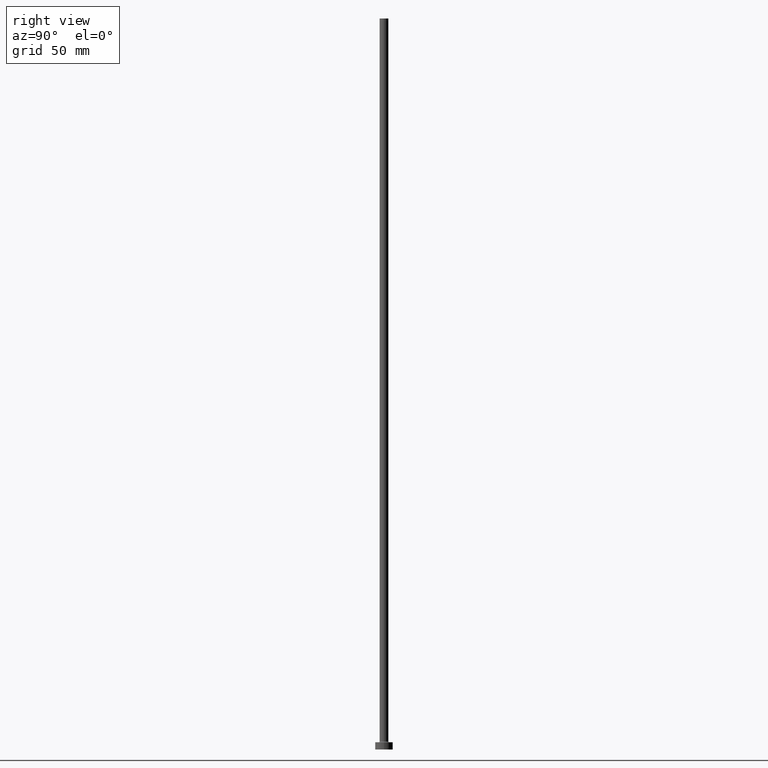
[diagram: clean part render]
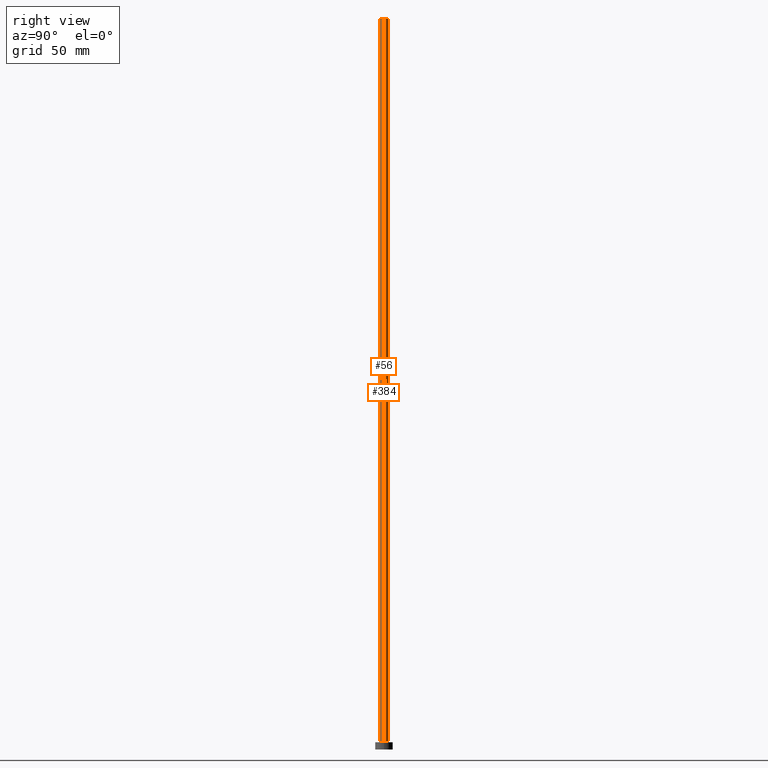
[diagram: same view with one multi-face feature highlighted, each face labeled with its STEP entity id]
A machine part, right view. The highlighted faces form ONE feature: a constant-radius fillet chain: 2 tangent blend faces with common blend radius 3 mm. The faces share edges in the B-rep.
Their STEP definitions:
[1] entity #384 (Cylinder):
#25 = DIRECTION ( 'NONE',  ( -0.000000000000000000, -0.000000000000000000, -1.000000000000000000 ) ) ;
#29 = ORIENTED_EDGE ( 'NONE', *, *, #179, .T. ) ;
#57 = LINE ( 'NONE', #264, #223 ) ;
#68 = FACE_OUTER_BOUND ( 'NONE', #292, .T. ) ;
#70 = CARTESIAN_POINT ( 'NONE',  ( 0.000000000000000000, 0.000000000000000000, 500.0000000000000000 ) ) ;
#84 = ORIENTED_EDGE ( 'NONE', *, *, #231, .F. ) ;
#101 = VERTEX_POINT ( 'NONE', #435 ) ;
#104 = VERTEX_POINT ( 'NONE', #124 ) ;
#120 = VECTOR ( 'NONE', #25, 1000.000000000000000 ) ;
#124 = CARTESIAN_POINT ( 'NONE',  ( -3.000000000000000444, 0.000000000000000000, 5.500000000000005329 ) ) ;
#127 = DIRECTION ( 'NONE',  ( -0.000000000000000000, -0.000000000000000000, -1.000000000000000000 ) ) ;
#171 = CARTESIAN_POINT ( 'NONE',  ( -3.000000000000000444, 0.000000000000000000, 500.0000000000000000 ) ) ;
#172 = CIRCLE ( 'NONE', #244, 3.000000000000000444 ) ;
#176 = DIRECTION ( 'NONE',  ( 1.000000000000000000, 0.000000000000000000, 0.000000000000000000 ) ) ;
#179 = EDGE_CURVE ( 'NONE', #427, #104, #440, .T. ) ;
#187 = CYLINDRICAL_SURFACE ( 'NONE', #367, 3.000000000000000444 ) ;
#198 = CARTESIAN_POINT ( 'NONE',  ( 3.000000000000000444, 3.673940397442060361E-16, 5.500000000000005329 ) ) ;
#211 = DIRECTION ( 'NONE',  ( 1.000000000000000000, 0.000000000000000000, 0.000000000000000000 ) ) ;
#223 = VECTOR ( 'NONE', #127, 1000.000000000000000 ) ;
#231 = EDGE_CURVE ( 'NONE', #343, #101, #172, .T. ) ;
#244 = AXIS2_PLACEMENT_3D ( 'NONE', #70, #250, #211 ) ;
#250 = DIRECTION ( 'NONE',  ( 0.000000000000000000, 0.000000000000000000, 1.000000000000000000 ) ) ;
#255 = CARTESIAN_POINT ( 'NONE',  ( 0.000000000000000000, 0.000000000000000000, 500.0000000000000000 ) ) ;
#264 = CARTESIAN_POINT ( 'NONE',  ( 3.000000000000000444, 3.673940397442060361E-16, 500.0000000000000000 ) ) ;
#292 = EDGE_LOOP ( 'NONE', ( #84, #388, #29, #441 ) ) ;
#343 = VERTEX_POINT ( 'NONE', #450 ) ;
#349 = EDGE_CURVE ( 'NONE', #101, #104, #351, .T. ) ;
#351 = LINE ( 'NONE', #171, #120 ) ;
#358 = DIRECTION ( 'NONE',  ( -1.000000000000000000, 0.000000000000000000, 0.000000000000000000 ) ) ;
#367 = AXIS2_PLACEMENT_3D ( 'NONE', #255, #460, #358 ) ;
#384 = ADVANCED_FACE ( 'NONE', ( #68 ), #187, .T. ) ;
#388 = ORIENTED_EDGE ( 'NONE', *, *, #407, .T. ) ;
#407 = EDGE_CURVE ( 'NONE', #343, #427, #57, .T. ) ;
#422 = DIRECTION ( 'NONE',  ( 0.000000000000000000, 0.000000000000000000, 1.000000000000000000 ) ) ;
#427 = VERTEX_POINT ( 'NONE', #198 ) ;
#435 = CARTESIAN_POINT ( 'NONE',  ( -3.000000000000000444, 0.000000000000000000, 500.0000000000000000 ) ) ;
#440 = CIRCLE ( 'NONE', #445, 3.000000000000000444 ) ;
#441 = ORIENTED_EDGE ( 'NONE', *, *, #349, .F. ) ;
#445 = AXIS2_PLACEMENT_3D ( 'NONE', #457, #422, #176 ) ;
#450 = CARTESIAN_POINT ( 'NONE',  ( 3.000000000000000444, 3.673940397442060361E-16, 500.0000000000000000 ) ) ;
#457 = CARTESIAN_POINT ( 'NONE',  ( 0.000000000000000000, 0.000000000000000000, 5.500000000000005329 ) ) ;
#460 = DIRECTION ( 'NONE',  ( -0.000000000000000000, -0.000000000000000000, -1.000000000000000000 ) ) ;
[2] entity #56 (Cylinder):
#25 = DIRECTION ( 'NONE',  ( -0.000000000000000000, -0.000000000000000000, -1.000000000000000000 ) ) ;
#42 = DIRECTION ( 'NONE',  ( 0.000000000000000000, 0.000000000000000000, 1.000000000000000000 ) ) ;
#44 = AXIS2_PLACEMENT_3D ( 'NONE', #220, #42, #337 ) ;
#50 = CARTESIAN_POINT ( 'NONE',  ( 0.000000000000000000, 0.000000000000000000, 500.0000000000000000 ) ) ;
#52 = CIRCLE ( 'NONE', #44, 3.000000000000000444 ) ;
#56 = ADVANCED_FACE ( 'NONE', ( #269 ), #287, .T. ) ;
#57 = LINE ( 'NONE', #264, #223 ) ;
#60 = ORIENTED_EDGE ( 'NONE', *, *, #117, .F. ) ;
#97 = AXIS2_PLACEMENT_3D ( 'NONE', #261, #404, #275 ) ;
#101 = VERTEX_POINT ( 'NONE', #435 ) ;
#104 = VERTEX_POINT ( 'NONE', #124 ) ;
#117 = EDGE_CURVE ( 'NONE', #101, #343, #342, .T. ) ;
#120 = VECTOR ( 'NONE', #25, 1000.000000000000000 ) ;
#124 = CARTESIAN_POINT ( 'NONE',  ( -3.000000000000000444, 0.000000000000000000, 5.500000000000005329 ) ) ;
#127 = DIRECTION ( 'NONE',  ( -0.000000000000000000, -0.000000000000000000, -1.000000000000000000 ) ) ;
#165 = EDGE_LOOP ( 'NONE', ( #459, #60, #206, #232 ) ) ;
#171 = CARTESIAN_POINT ( 'NONE',  ( -3.000000000000000444, 0.000000000000000000, 500.0000000000000000 ) ) ;
#198 = CARTESIAN_POINT ( 'NONE',  ( 3.000000000000000444, 3.673940397442060361E-16, 5.500000000000005329 ) ) ;
#206 = ORIENTED_EDGE ( 'NONE', *, *, #349, .T. ) ;
#207 = EDGE_CURVE ( 'NONE', #104, #427, #52, .T. ) ;
#220 = CARTESIAN_POINT ( 'NONE',  ( 0.000000000000000000, 0.000000000000000000, 5.500000000000005329 ) ) ;
#223 = VECTOR ( 'NONE', #127, 1000.000000000000000 ) ;
#232 = ORIENTED_EDGE ( 'NONE', *, *, #207, .T. ) ;
#261 = CARTESIAN_POINT ( 'NONE',  ( 0.000000000000000000, 0.000000000000000000, 500.0000000000000000 ) ) ;
#264 = CARTESIAN_POINT ( 'NONE',  ( 3.000000000000000444, 3.673940397442060361E-16, 500.0000000000000000 ) ) ;
#269 = FACE_OUTER_BOUND ( 'NONE', #165, .T. ) ;
#275 = DIRECTION ( 'NONE',  ( 1.000000000000000000, 0.000000000000000000, 0.000000000000000000 ) ) ;
#287 = CYLINDRICAL_SURFACE ( 'NONE', #380, 3.000000000000000444 ) ;
#335 = DIRECTION ( 'NONE',  ( -1.000000000000000000, 0.000000000000000000, 0.000000000000000000 ) ) ;
#337 = DIRECTION ( 'NONE',  ( 1.000000000000000000, 0.000000000000000000, 0.000000000000000000 ) ) ;
#342 = CIRCLE ( 'NONE', #97, 3.000000000000000444 ) ;
#343 = VERTEX_POINT ( 'NONE', #450 ) ;
#349 = EDGE_CURVE ( 'NONE', #101, #104, #351, .T. ) ;
#351 = LINE ( 'NONE', #171, #120 ) ;
#380 = AXIS2_PLACEMENT_3D ( 'NONE', #50, #400, #335 ) ;
#400 = DIRECTION ( 'NONE',  ( -0.000000000000000000, -0.000000000000000000, -1.000000000000000000 ) ) ;
#404 = DIRECTION ( 'NONE',  ( 0.000000000000000000, 0.000000000000000000, 1.000000000000000000 ) ) ;
#407 = EDGE_CURVE ( 'NONE', #343, #427, #57, .T. ) ;
#427 = VERTEX_POINT ( 'NONE', #198 ) ;
#435 = CARTESIAN_POINT ( 'NONE',  ( -3.000000000000000444, 0.000000000000000000, 500.0000000000000000 ) ) ;
#450 = CARTESIAN_POINT ( 'NONE',  ( 3.000000000000000444, 3.673940397442060361E-16, 500.0000000000000000 ) ) ;
#459 = ORIENTED_EDGE ( 'NONE', *, *, #407, .F. ) ;